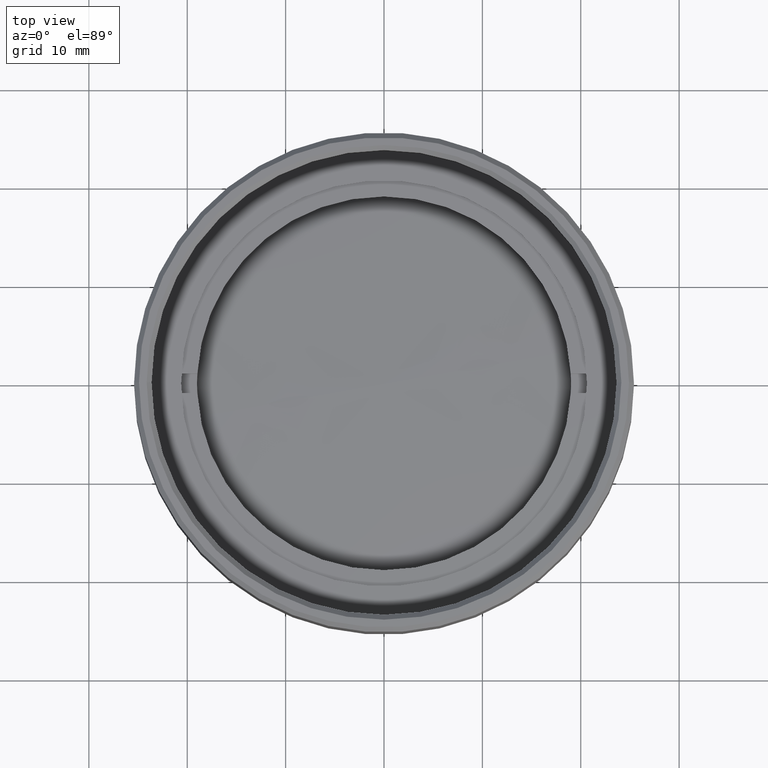
[diagram: clean part render]
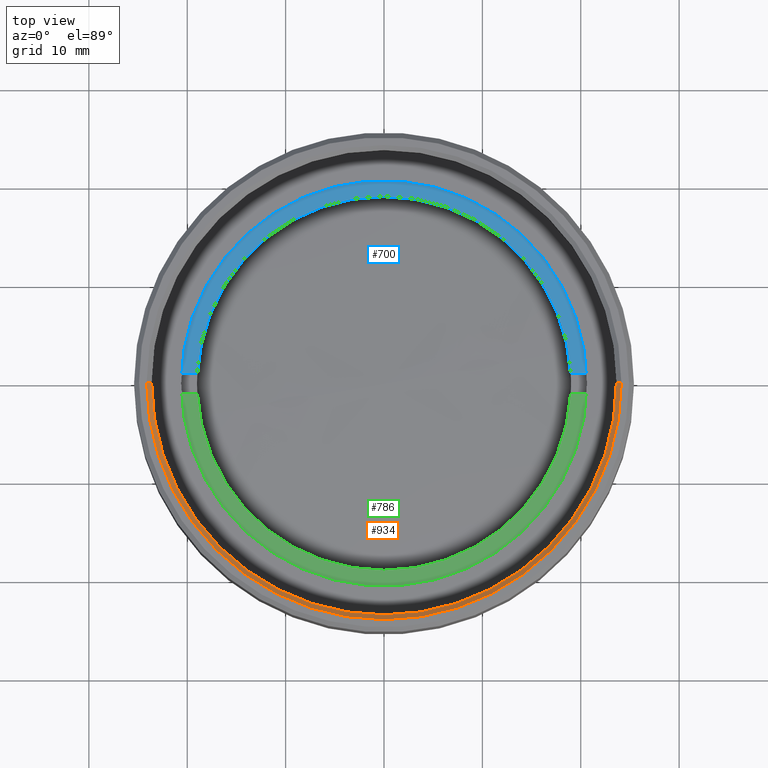
[diagram: same view with three faces highlighted in distinct colors, each labeled with its STEP entity id]
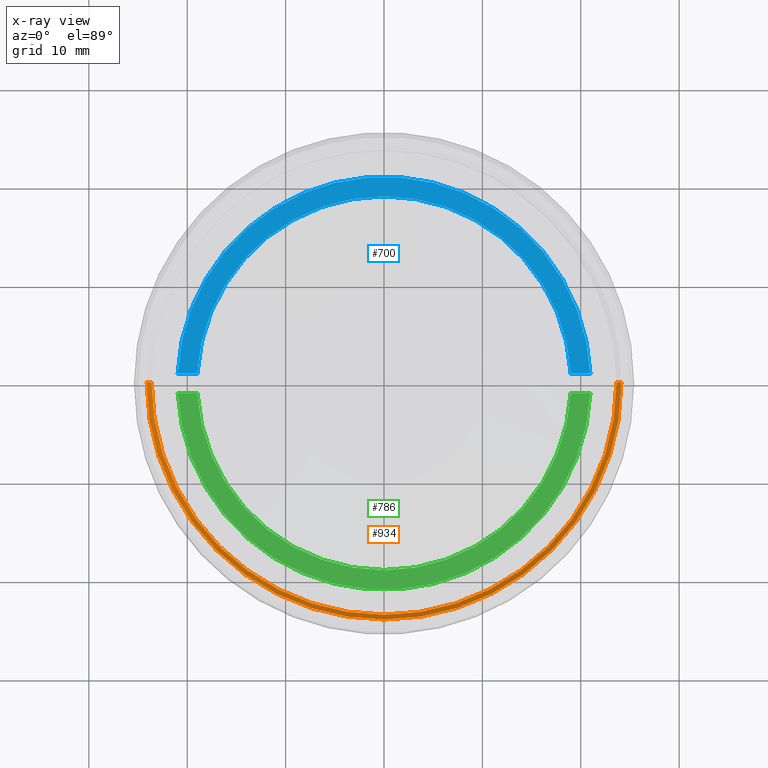
[diagram: x-ray of the same camera — body ghosted, the three highlighted faces saturated]
A machine part, top view with three faces highlighted in distinct colors.
The next image is the same camera in x-ray (body ghosted, the three faces saturated) — at least one of them is partly hidden behind the body in this view.
Their STEP definitions:

[orange] entity #934 — the highlighted conical surface has half-angle 45 deg.
#79 = CARTESIAN_POINT ( 'NONE',  ( 0.000000000000000000, 0.000000000000000000, 19.50000000000000000 ) ) ;
#92 = CARTESIAN_POINT ( 'NONE',  ( 0.000000000000000000, 0.000000000000000000, 18.99999999999999289 ) ) ;
#96 = AXIS2_PLACEMENT_3D ( 'NONE', #262, #114, #707 ) ;
#114 = DIRECTION ( 'NONE',  ( 0.000000000000000000, 0.000000000000000000, 1.000000000000000000 ) ) ;
#210 = CARTESIAN_POINT ( 'NONE',  ( 24.12500000000002132, 0.000000000000000000, 19.50000000000000000 ) ) ;
#262 = CARTESIAN_POINT ( 'NONE',  ( 0.000000000000000000, 0.000000000000000000, 18.99999999999999289 ) ) ;
#314 = ORIENTED_EDGE ( 'NONE', *, *, #542, .F. ) ;
#377 = VERTEX_POINT ( 'NONE', #210 ) ;
#468 = CONICAL_SURFACE ( 'NONE', #1355, 23.62500000000000000, 0.7853981633974621568 ) ;
#512 = ORIENTED_EDGE ( 'NONE', *, *, #803, .F. ) ;
#542 = EDGE_CURVE ( 'NONE', #1353, #377, #627, .T. ) ;
#547 = CARTESIAN_POINT ( 'NONE',  ( -23.62500000000000000, 2.893228062985622214E-15, 18.99999999999999289 ) ) ;
#548 = DIRECTION ( 'NONE',  ( 1.000000000000000000, 0.000000000000000000, 0.000000000000000000 ) ) ;
#597 = CIRCLE ( 'NONE', #96, 23.62500000000000000 ) ;
#603 = ORIENTED_EDGE ( 'NONE', *, *, #675, .F. ) ;
#627 = LINE ( 'NONE', #1216, #802 ) ;
#645 = CARTESIAN_POINT ( 'NONE',  ( -24.12500000000002132, 2.954460402942992155E-15, 19.50000000000000000 ) ) ;
#675 = EDGE_CURVE ( 'NONE', #377, #1818, #1882, .T. ) ;
#687 = DIRECTION ( 'NONE',  ( 0.000000000000000000, 0.000000000000000000, 1.000000000000000000 ) ) ;
#707 = DIRECTION ( 'NONE',  ( 1.000000000000000000, 0.000000000000000000, 0.000000000000000000 ) ) ;
#802 = VECTOR ( 'NONE', #1807, 999.9999999999998863 ) ;
#803 = EDGE_CURVE ( 'NONE', #1211, #1353, #597, .T. ) ;
#839 = DIRECTION ( 'NONE',  ( -0.000000000000000000, -0.000000000000000000, -1.000000000000000000 ) ) ;
#934 = ADVANCED_FACE ( 'NONE', ( #1419 ), #468, .F. ) ;
#1056 = VECTOR ( 'NONE', #1212, 999.9999999999998863 ) ;
#1189 = ORIENTED_EDGE ( 'NONE', *, *, #1804, .T. ) ;
#1211 = VERTEX_POINT ( 'NONE', #547 ) ;
#1212 = DIRECTION ( 'NONE',  ( -0.7071067811865574537, 8.659560562355054885E-17, 0.7071067811865376918 ) ) ;
#1216 = CARTESIAN_POINT ( 'NONE',  ( 23.62500000000000000, 0.000000000000000000, 18.99999999999999289 ) ) ;
#1353 = VERTEX_POINT ( 'NONE', #1467 ) ;
#1355 = AXIS2_PLACEMENT_3D ( 'NONE', #92, #687, #548 ) ;
#1376 = CARTESIAN_POINT ( 'NONE',  ( -23.62500000000000000, 2.893228062985622214E-15, 18.99999999999999289 ) ) ;
#1419 = FACE_OUTER_BOUND ( 'NONE', #1512, .T. ) ;
#1424 = DIRECTION ( 'NONE',  ( 1.000000000000000000, 0.000000000000000000, 0.000000000000000000 ) ) ;
#1467 = CARTESIAN_POINT ( 'NONE',  ( 23.62500000000000000, 0.000000000000000000, 18.99999999999999289 ) ) ;
#1512 = EDGE_LOOP ( 'NONE', ( #512, #1189, #603, #314 ) ) ;
#1578 = AXIS2_PLACEMENT_3D ( 'NONE', #79, #839, #1424 ) ;
#1804 = EDGE_CURVE ( 'NONE', #1211, #1818, #1823, .T. ) ;
#1807 = DIRECTION ( 'NONE',  ( 0.7071067811865574537, 0.000000000000000000, 0.7071067811865376918 ) ) ;
#1818 = VERTEX_POINT ( 'NONE', #645 ) ;
#1823 = LINE ( 'NONE', #1376, #1056 ) ;
#1882 = CIRCLE ( 'NONE', #1578, 24.12500000000002132 ) ;

[blue] entity #700 — the highlighted planar face has unit normal (0, 0, 1).
#24 = VERTEX_POINT ( 'NONE', #1225 ) ;
#104 = ORIENTED_EDGE ( 'NONE', *, *, #589, .F. ) ;
#221 = PLANE ( 'NONE',  #1820 ) ;
#279 = CARTESIAN_POINT ( 'NONE',  ( -30.62185530834360492, 1.000000000000000000, 2.500000000000000000 ) ) ;
#411 = CARTESIAN_POINT ( 'NONE',  ( -18.97366596101027625, 1.000000000000000000, 2.500000000000000000 ) ) ;
#437 = AXIS2_PLACEMENT_3D ( 'NONE', #520, #844, #1138 ) ;
#502 = ORIENTED_EDGE ( 'NONE', *, *, #1343, .F. ) ;
#520 = CARTESIAN_POINT ( 'NONE',  ( 0.000000000000000000, 0.000000000000000000, 2.500000000000000000 ) ) ;
#524 = EDGE_LOOP ( 'NONE', ( #502, #876, #953, #104 ) ) ;
#555 = CARTESIAN_POINT ( 'NONE',  ( -20.97617696340303084, 1.000000000000000000, 2.500000000000000000 ) ) ;
#589 = EDGE_CURVE ( 'NONE', #1252, #879, #1136, .T. ) ;
#676 = DIRECTION ( 'NONE',  ( 0.000000000000000000, 0.000000000000000000, 1.000000000000000000 ) ) ;
#698 = DIRECTION ( 'NONE',  ( 1.000000000000000000, 0.000000000000000000, 0.000000000000000000 ) ) ;
#700 = ADVANCED_FACE ( 'NONE', ( #1555 ), #221, .T. ) ;
#844 = DIRECTION ( 'NONE',  ( 0.000000000000000000, 0.000000000000000000, 1.000000000000000000 ) ) ;
#873 = VERTEX_POINT ( 'NONE', #555 ) ;
#876 = ORIENTED_EDGE ( 'NONE', *, *, #1213, .T. ) ;
#879 = VERTEX_POINT ( 'NONE', #411 ) ;
#953 = ORIENTED_EDGE ( 'NONE', *, *, #1224, .F. ) ;
#1095 = CARTESIAN_POINT ( 'NONE',  ( -30.62185530834360492, 1.000000000000000000, 2.500000000000000000 ) ) ;
#1110 = VECTOR ( 'NONE', #1896, 1000.000000000000000 ) ;
#1136 = CIRCLE ( 'NONE', #1665, 19.00000000000000000 ) ;
#1138 = DIRECTION ( 'NONE',  ( 1.000000000000000000, 0.000000000000000000, 0.000000000000000000 ) ) ;
#1213 = EDGE_CURVE ( 'NONE', #24, #873, #1268, .T. ) ;
#1224 = EDGE_CURVE ( 'NONE', #879, #873, #1399, .T. ) ;
#1225 = CARTESIAN_POINT ( 'NONE',  ( 20.97617696340303084, 1.000000000000000000, 2.500000000000000000 ) ) ;
#1252 = VERTEX_POINT ( 'NONE', #1690 ) ;
#1258 = DIRECTION ( 'NONE',  ( 1.000000000000000000, 0.000000000000000000, -0.000000000000000000 ) ) ;
#1268 = CIRCLE ( 'NONE', #437, 21.00000000000000000 ) ;
#1294 = LINE ( 'NONE', #279, #1110 ) ;
#1343 = EDGE_CURVE ( 'NONE', #24, #1252, #1294, .T. ) ;
#1399 = LINE ( 'NONE', #1095, #1644 ) ;
#1405 = CARTESIAN_POINT ( 'NONE',  ( 0.000000000000000000, 0.000000000000000000, 2.500000000000000000 ) ) ;
#1433 = CARTESIAN_POINT ( 'NONE',  ( 0.000000000000000000, 0.000000000000000000, 2.500000000000000000 ) ) ;
#1555 = FACE_OUTER_BOUND ( 'NONE', #524, .T. ) ;
#1584 = DIRECTION ( 'NONE',  ( 0.000000000000000000, 0.000000000000000000, 1.000000000000000000 ) ) ;
#1644 = VECTOR ( 'NONE', #1713, 1000.000000000000000 ) ;
#1665 = AXIS2_PLACEMENT_3D ( 'NONE', #1433, #1584, #698 ) ;
#1690 = CARTESIAN_POINT ( 'NONE',  ( 18.97366596101027625, 1.000000000000000000, 2.500000000000000000 ) ) ;
#1713 = DIRECTION ( 'NONE',  ( -1.000000000000000000, -0.000000000000000000, -0.000000000000000000 ) ) ;
#1820 = AXIS2_PLACEMENT_3D ( 'NONE', #1405, #676, #1258 ) ;
#1896 = DIRECTION ( 'NONE',  ( -1.000000000000000000, -0.000000000000000000, -0.000000000000000000 ) ) ;

[green] entity #786 — the highlighted planar face has unit normal (0, 0, 1).
#47 = EDGE_CURVE ( 'NONE', #1058, #1297, #1630, .T. ) ;
#118 = CARTESIAN_POINT ( 'NONE',  ( 0.000000000000000000, 0.000000000000000000, 2.500000000000000000 ) ) ;
#141 = CARTESIAN_POINT ( 'NONE',  ( 20.97617696340303084, -1.000000000000000000, 2.500000000000000000 ) ) ;
#145 = FACE_OUTER_BOUND ( 'NONE', #690, .T. ) ;
#256 = PLANE ( 'NONE',  #928 ) ;
#286 = ORIENTED_EDGE ( 'NONE', *, *, #1699, .F. ) ;
#305 = LINE ( 'NONE', #316, #1867 ) ;
#316 = CARTESIAN_POINT ( 'NONE',  ( -30.62185530834360492, -1.000000000000000000, 2.500000000000000000 ) ) ;
#356 = DIRECTION ( 'NONE',  ( 1.000000000000000000, 0.000000000000000000, 0.000000000000000000 ) ) ;
#426 = CIRCLE ( 'NONE', #1040, 19.00000000000000000 ) ;
#513 = DIRECTION ( 'NONE',  ( 0.000000000000000000, 0.000000000000000000, 1.000000000000000000 ) ) ;
#690 = EDGE_LOOP ( 'NONE', ( #286, #1683, #1148, #1326 ) ) ;
#716 = DIRECTION ( 'NONE',  ( 0.000000000000000000, 0.000000000000000000, 1.000000000000000000 ) ) ;
#786 = ADVANCED_FACE ( 'NONE', ( #145 ), #256, .T. ) ;
#928 = AXIS2_PLACEMENT_3D ( 'NONE', #1182, #716, #1592 ) ;
#964 = CARTESIAN_POINT ( 'NONE',  ( -20.97617696340303084, -1.000000000000000000, 2.500000000000000000 ) ) ;
#1014 = DIRECTION ( 'NONE',  ( 1.000000000000000000, 0.000000000000000000, 0.000000000000000000 ) ) ;
#1040 = AXIS2_PLACEMENT_3D ( 'NONE', #1088, #513, #356 ) ;
#1058 = VERTEX_POINT ( 'NONE', #964 ) ;
#1083 = CARTESIAN_POINT ( 'NONE',  ( -30.62185530834360492, -1.000000000000000000, 2.500000000000000000 ) ) ;
#1088 = CARTESIAN_POINT ( 'NONE',  ( 0.000000000000000000, 0.000000000000000000, 2.500000000000000000 ) ) ;
#1148 = ORIENTED_EDGE ( 'NONE', *, *, #1531, .F. ) ;
#1182 = CARTESIAN_POINT ( 'NONE',  ( 0.000000000000000000, 0.000000000000000000, 2.500000000000000000 ) ) ;
#1251 = LINE ( 'NONE', #1083, #1709 ) ;
#1288 = CARTESIAN_POINT ( 'NONE',  ( -18.97366596101027625, -1.000000000000000000, 2.500000000000000000 ) ) ;
#1297 = VERTEX_POINT ( 'NONE', #141 ) ;
#1298 = DIRECTION ( 'NONE',  ( 1.000000000000000000, 0.000000000000000000, 0.000000000000000000 ) ) ;
#1326 = ORIENTED_EDGE ( 'NONE', *, *, #1835, .F. ) ;
#1361 = VERTEX_POINT ( 'NONE', #1288 ) ;
#1367 = AXIS2_PLACEMENT_3D ( 'NONE', #118, #1862, #1014 ) ;
#1489 = CARTESIAN_POINT ( 'NONE',  ( 18.97366596101027625, -1.000000000000000000, 2.500000000000000000 ) ) ;
#1531 = EDGE_CURVE ( 'NONE', #1608, #1297, #1251, .T. ) ;
#1592 = DIRECTION ( 'NONE',  ( 1.000000000000000000, 0.000000000000000000, -0.000000000000000000 ) ) ;
#1608 = VERTEX_POINT ( 'NONE', #1489 ) ;
#1630 = CIRCLE ( 'NONE', #1367, 21.00000000000000000 ) ;
#1683 = ORIENTED_EDGE ( 'NONE', *, *, #47, .T. ) ;
#1699 = EDGE_CURVE ( 'NONE', #1058, #1361, #305, .T. ) ;
#1709 = VECTOR ( 'NONE', #1833, 1000.000000000000000 ) ;
#1833 = DIRECTION ( 'NONE',  ( 1.000000000000000000, 0.000000000000000000, 0.000000000000000000 ) ) ;
#1835 = EDGE_CURVE ( 'NONE', #1361, #1608, #426, .T. ) ;
#1862 = DIRECTION ( 'NONE',  ( 0.000000000000000000, 0.000000000000000000, 1.000000000000000000 ) ) ;
#1867 = VECTOR ( 'NONE', #1298, 1000.000000000000000 ) ;